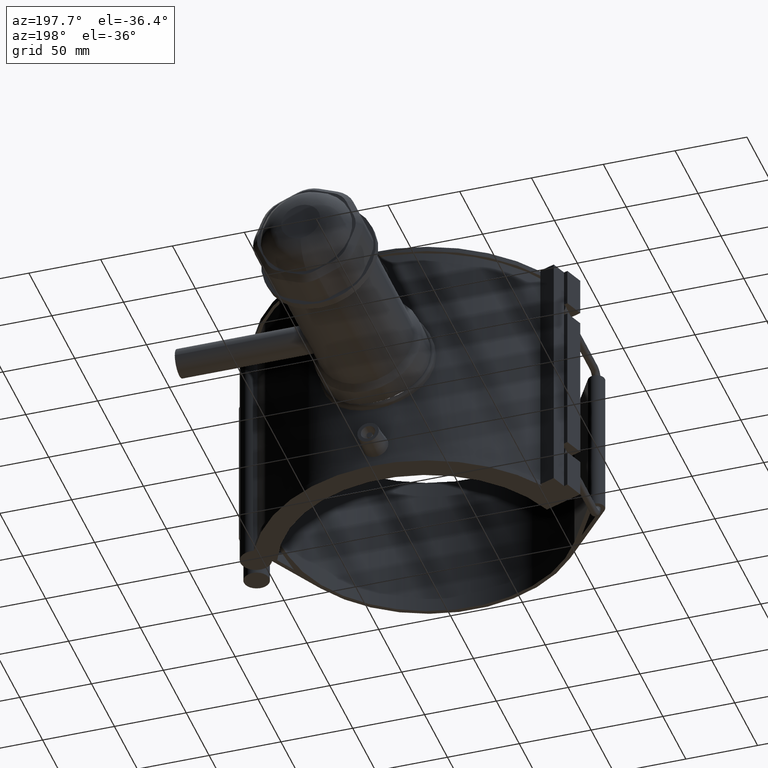
[diagram: clean part render]
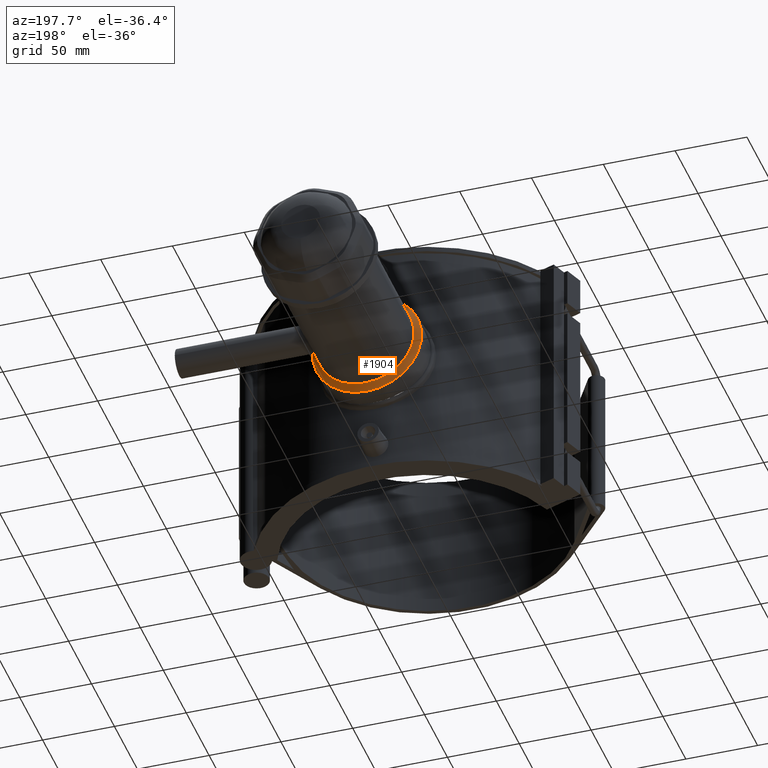
[diagram: same view with one face highlighted and labeled with its STEP entity id]
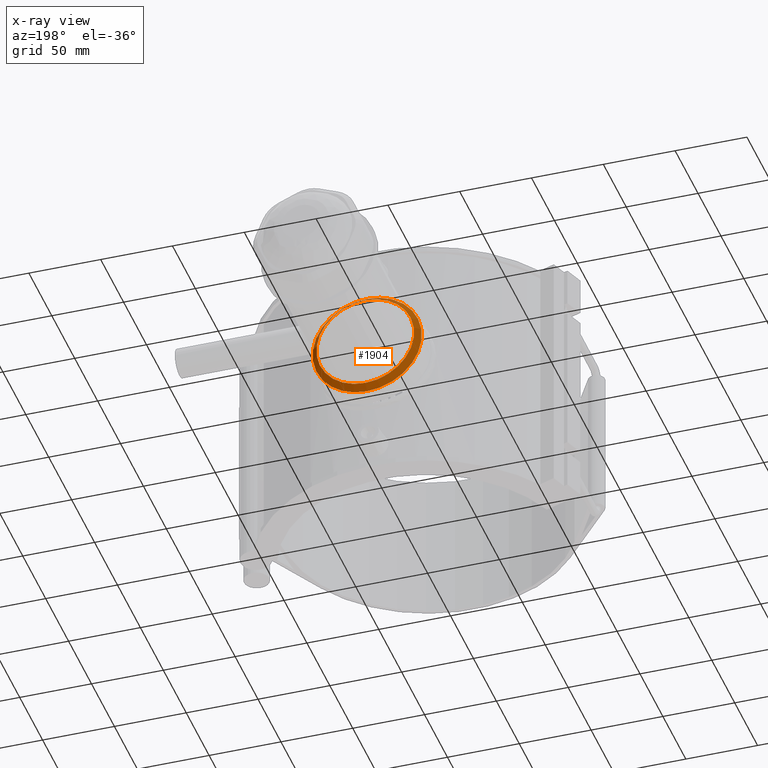
[diagram: x-ray of the same camera — body ghosted, the highlighted face saturated]
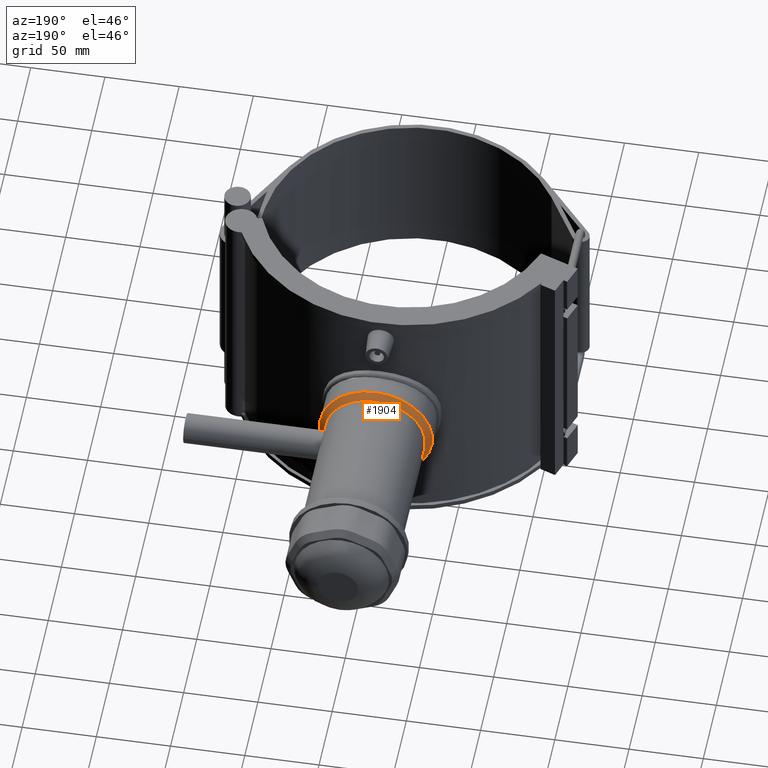
[diagram: same view with one face highlighted and labeled with its STEP entity id]
A machine part, auxiliary view. The second image highlights one B-rep face of the part: STEP entity #1904.
The next image is the same camera in x-ray: the body ghosted, the highlighted face saturated — about 9% of this face is hidden behind the body in this view.
A second angle (auxiliary view) of the same face is appended — the face is thin or edge-on in the first view.
In plain terms, the highlighted conical surface has half-angle 45 deg.
Its self-contained STEP definition (entity closure, byte-faithful):
#36=CONICAL_SURFACE('',#2052,36.,45.);
#368=FACE_BOUND('',#612,.T.);
#483=FACE_OUTER_BOUND('',#611,.T.);
#611=EDGE_LOOP('',(#1391));
#612=EDGE_LOOP('',(#1392));
#734=CIRCLE('',#2000,38.);
#758=CIRCLE('',#2053,34.);
#821=VERTEX_POINT('',#2903);
#869=VERTEX_POINT('',#3152);
#999=EDGE_CURVE('',#821,#821,#734,.T.);
#1071=EDGE_CURVE('',#869,#869,#758,.T.);
#1391=ORIENTED_EDGE('',*,*,#999,.T.);
#1392=ORIENTED_EDGE('',*,*,#1071,.F.);
#1904=ADVANCED_FACE('',(#483,#368),#36,.T.);
#2000=AXIS2_PLACEMENT_3D('',#2904,#2218,#2219);
#2052=AXIS2_PLACEMENT_3D('',#3151,#2367,#2368);
#2053=AXIS2_PLACEMENT_3D('',#3153,#2369,#2370);
#2218=DIRECTION('center_axis',(0.,1.,3.06161699786838E-16));
#2219=DIRECTION('ref_axis',(0.,0.,-1.));
#2367=DIRECTION('center_axis',(0.,-1.,-3.06161699786838E-16));
#2368=DIRECTION('ref_axis',(0.,1.44576358232674E-16,-1.));
#2369=DIRECTION('center_axis',(0.,1.,3.06161699786838E-16));
#2370=DIRECTION('ref_axis',(1.,0.,0.));
#2903=CARTESIAN_POINT('',(4.65365783675994E-15,132.,38.));
#2904=CARTESIAN_POINT('Origin',(0.,132.,9.79717439317883E-15));
#3151=CARTESIAN_POINT('Origin',(0.,134.,1.04094977927525E-14));
#3152=CARTESIAN_POINT('',(0.,136.,34.));
#3153=CARTESIAN_POINT('Origin',(0.,136.,1.10218211923262E-14));